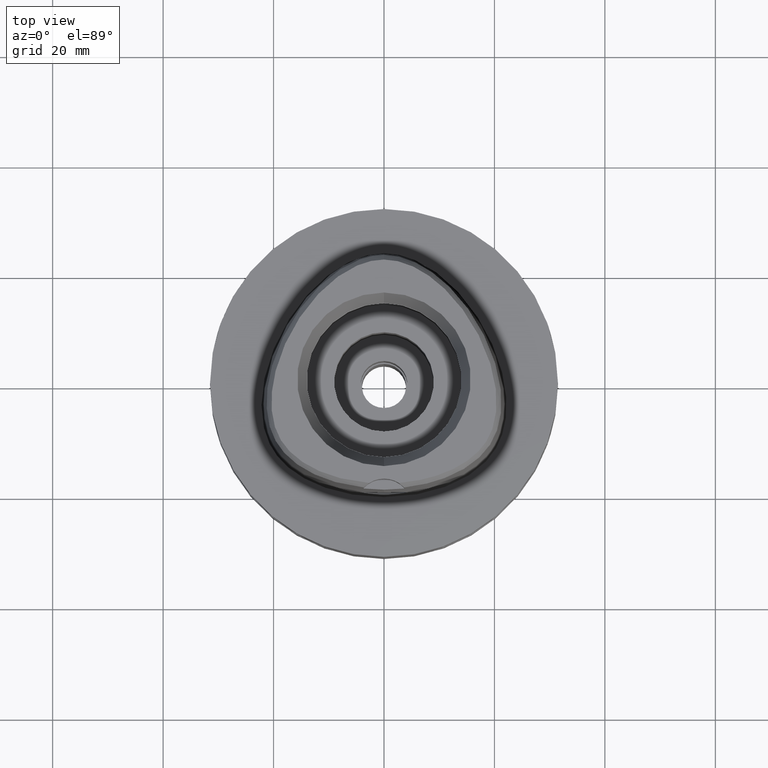
[diagram: clean part render]
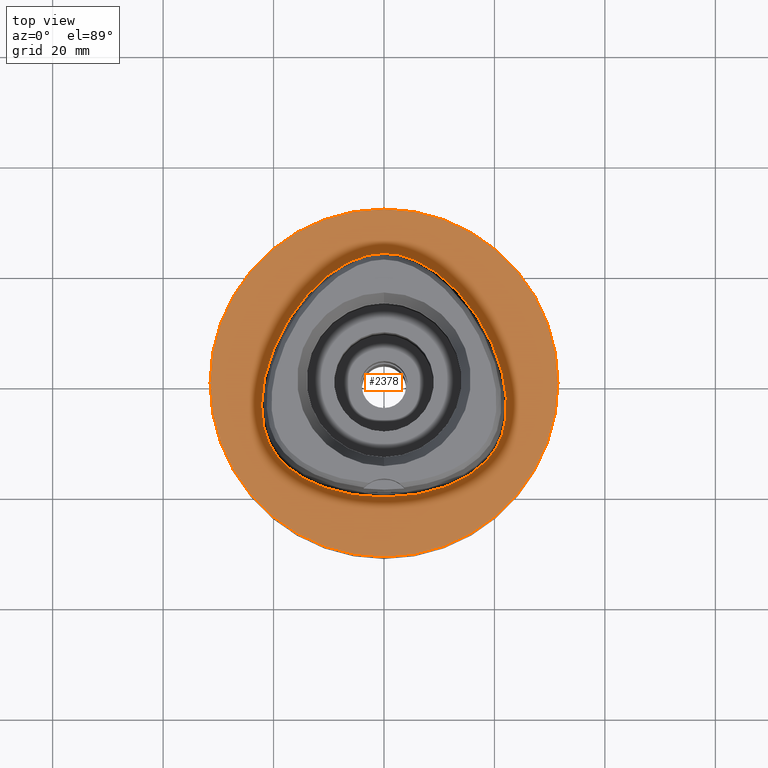
[diagram: same view with one face highlighted and labeled with its STEP entity id]
A machine part, top view. The second image highlights one B-rep face of the part: STEP entity #2378.
In plain terms, the highlighted planar face has unit normal (0, 0, -1).
Its self-contained STEP definition (entity closure, byte-faithful):
#301=CARTESIAN_POINT('',(0.E0,0.E0,0.E0));
#302=DIRECTION('',(0.E0,0.E0,-1.E0));
#303=DIRECTION('',(0.E0,-1.E0,0.E0));
#304=AXIS2_PLACEMENT_3D('',#301,#302,#303);
#309=CARTESIAN_POINT('',(0.E0,0.E0,0.E0));
#310=DIRECTION('',(0.E0,0.E0,-1.E0));
#311=DIRECTION('',(0.E0,1.E0,0.E0));
#312=AXIS2_PLACEMENT_3D('',#309,#310,#311);
#317=CARTESIAN_POINT('',(-1.465437147497E-11,-2.0675E1,1.633878217907E-13));
#318=CARTESIAN_POINT('',(8.668803364509E-1,-2.0675E1,1.633878217907E-13));
#319=CARTESIAN_POINT('',(2.574132580442E0,-2.061244162623E1,
-7.582855198689E-14));
#320=CARTESIAN_POINT('',(5.087415634096E0,-2.033690811064E1,
2.031819926811E-14));
#321=CARTESIAN_POINT('',(7.457333870705E0,-1.989744049255E1,0.E0));
#322=CARTESIAN_POINT('',(9.642474092368E0,-1.931997048993E1,0.E0));
#323=CARTESIAN_POINT('',(1.161486828615E1,-1.863267288465E1,0.E0));
#324=CARTESIAN_POINT('',(1.336667751976E1,-1.786241103413E1,0.E0));
#325=CARTESIAN_POINT('',(1.490394630358E1,-1.703147547079E1,0.E0));
#326=CARTESIAN_POINT('',(1.624047223969E1,-1.615722366742E1,0.E0));
#327=CARTESIAN_POINT('',(1.739425138717E1,-1.525159542110E1,0.E0));
#328=CARTESIAN_POINT('',(1.838383629170E1,-1.432233826779E1,0.E0));
#329=CARTESIAN_POINT('',(1.922780960206E1,-1.337136704076E1,0.E0));
#330=CARTESIAN_POINT('',(1.993661084934E1,-1.240626858167E1,0.E0));
#331=CARTESIAN_POINT('',(2.053368982503E1,-1.140943834190E1,0.E0));
#332=CARTESIAN_POINT('',(2.104238743355E1,-1.034184637881E1,0.E0));
#333=CARTESIAN_POINT('',(2.147152132822E1,-9.173214858301E0,0.E0));
#334=CARTESIAN_POINT('',(2.181291483902E1,-7.891879349025E0,0.E0));
#335=CARTESIAN_POINT('',(2.205606975334E1,-6.484692010195E0,0.E0));
#336=CARTESIAN_POINT('',(2.218640316885E1,-4.938312516264E0,0.E0));
#337=CARTESIAN_POINT('',(2.218556816472E1,-3.242379144613E0,0.E0));
#338=CARTESIAN_POINT('',(2.203223031833E1,-1.390688553403E0,0.E0));
#339=CARTESIAN_POINT('',(2.170392551959E1,6.135368432799E-1,0.E0));
#340=CARTESIAN_POINT('',(2.117977277811E1,2.755970691160E0,0.E0));
#341=CARTESIAN_POINT('',(2.044556324996E1,5.004291597637E0,0.E0));
#342=CARTESIAN_POINT('',(1.949790433788E1,7.310420973057E0,0.E0));
#343=CARTESIAN_POINT('',(1.834986376713E1,9.609257534400E0,0.E0));
#344=CARTESIAN_POINT('',(1.702863727558E1,1.183342032799E1,0.E0));
#345=CARTESIAN_POINT('',(1.557004500344E1,1.392510671624E1,0.E0));
#346=CARTESIAN_POINT('',(1.402223070619E1,1.582947092970E1,0.E0));
#347=CARTESIAN_POINT('',(1.243336650331E1,1.751068427778E1,0.E0));
#348=CARTESIAN_POINT('',(1.084474266800E1,1.895355036210E1,0.E0));
#349=CARTESIAN_POINT('',(9.286601373197E0,2.016057572219E1,0.E0));
#350=CARTESIAN_POINT('',(7.779131805848E0,2.114516431690E1,0.E0));
#351=CARTESIAN_POINT('',(6.332618128114E0,2.192726836443E1,0.E0));
#352=CARTESIAN_POINT('',(4.950403931356E0,2.252844192297E1,0.E0));
#353=CARTESIAN_POINT('',(3.631139080254E0,2.296924701999E1,0.E0));
#354=CARTESIAN_POINT('',(2.369452654715E0,2.326780054190E1,1.995923674423E-14));
#355=CARTESIAN_POINT('',(1.160528679921E0,2.343866214432E1,
-7.448888560977E-14));
#356=CARTESIAN_POINT('',(3.818591413275E-1,2.347499999998E1,
1.605012419266E-13));
#357=CARTESIAN_POINT('',(6.719634042017E-11,2.347499999998E1,
1.605012419266E-13));
#362=CARTESIAN_POINT('',(6.719634042017E-11,2.347499999998E1,
1.605012419266E-13));
#363=CARTESIAN_POINT('',(-3.819443125614E-1,2.347499999999E1,
1.605012419266E-13));
#364=CARTESIAN_POINT('',(-1.160753543235E0,2.343864893773E1,
-7.448888560977E-14));
#365=CARTESIAN_POINT('',(-2.369897235818E0,2.326771777719E1,
1.995923674423E-14));
#366=CARTESIAN_POINT('',(-3.631506996106E0,2.296914083435E1,0.E0));
#367=CARTESIAN_POINT('',(-4.950871462963E0,2.252826647575E1,0.E0));
#368=CARTESIAN_POINT('',(-6.333223129735E0,2.192697973507E1,0.E0));
#369=CARTESIAN_POINT('',(-7.780006260010E0,2.114465454678E1,0.E0));
#370=CARTESIAN_POINT('',(-9.287817810582E0,2.015972199508E1,0.E0));
#371=CARTESIAN_POINT('',(-1.084630283847E1,1.895225574736E1,0.E0));
#372=CARTESIAN_POINT('',(-1.243525740560E1,1.750884400656E1,0.E0));
#373=CARTESIAN_POINT('',(-1.402428453671E1,1.582713623459E1,0.E0));
#374=CARTESIAN_POINT('',(-1.557212568721E1,1.392235370860E1,0.E0));
#375=CARTESIAN_POINT('',(-1.703065248654E1,1.183029480854E1,0.E0));
#376=CARTESIAN_POINT('',(-1.835155091107E1,9.606145577007E0,0.E0));
#377=CARTESIAN_POINT('',(-1.949918507097E1,7.307593336969E0,0.E0));
#378=CARTESIAN_POINT('',(-2.044658800116E1,5.001496273384E0,0.E0));
#379=CARTESIAN_POINT('',(-2.118042744387E1,2.753635525171E0,0.E0));
#380=CARTESIAN_POINT('',(-2.170430537635E1,6.116321017314E-1,0.E0));
#381=CARTESIAN_POINT('',(-2.203239856245E1,-1.392131412768E0,0.E0));
#382=CARTESIAN_POINT('',(-2.218560358290E1,-3.243417684925E0,0.E0));
#383=CARTESIAN_POINT('',(-2.218636695163E1,-4.939018589236E0,0.E0));
#384=CARTESIAN_POINT('',(-2.205600175491E1,-6.485269750078E0,0.E0));
#385=CARTESIAN_POINT('',(-2.181276012104E1,-7.892522551753E0,0.E0));
#386=CARTESIAN_POINT('',(-2.147142586124E1,-9.173662054386E0,0.E0));
#387=CARTESIAN_POINT('',(-2.104146311162E1,-1.034405957759E1,0.E0));
#388=CARTESIAN_POINT('',(-2.053359624625E1,-1.140940031442E1,0.E0));
#389=CARTESIAN_POINT('',(-1.993790422352E1,-1.240421732180E1,0.E0));
#390=CARTESIAN_POINT('',(-1.923004215985E1,-1.336862376336E1,0.E0));
#391=CARTESIAN_POINT('',(-1.838572468631E1,-1.432040939537E1,0.E0));
#392=CARTESIAN_POINT('',(-1.739686473439E1,-1.524933815675E1,0.E0));
#393=CARTESIAN_POINT('',(-1.624317183008E1,-1.615530167288E1,0.E0));
#394=CARTESIAN_POINT('',(-1.490691632917E1,-1.702971006248E1,0.E0));
#395=CARTESIAN_POINT('',(-1.336963315605E1,-1.786098774094E1,0.E0));
#396=CARTESIAN_POINT('',(-1.161737691973E1,-1.863170718294E1,0.E0));
#397=CARTESIAN_POINT('',(-9.644583108640E0,-1.931934609262E1,0.E0));
#398=CARTESIAN_POINT('',(-7.458719466200E0,-1.989715192294E1,0.E0));
#399=CARTESIAN_POINT('',(-5.088167641425E0,-2.033681073035E1,
2.031819926811E-14));
#400=CARTESIAN_POINT('',(-2.574472754017E0,-2.061242599542E1,
-7.582855198689E-14));
#401=CARTESIAN_POINT('',(-8.669815551707E-1,-2.0675E1,1.633878217907E-13));
#402=CARTESIAN_POINT('',(-1.465437147497E-11,-2.0675E1,1.633878217907E-13));
#1538=VERTEX_POINT('',#362);
#1539=VERTEX_POINT('',#402);
#1544=CARTESIAN_POINT('',(0.E0,-3.15E1,0.E0));
#1545=CARTESIAN_POINT('',(0.E0,3.15E1,0.E0));
#1546=VERTEX_POINT('',#1544);
#1547=VERTEX_POINT('',#1545);
#2362=CARTESIAN_POINT('',(0.E0,0.E0,0.E0));
#2363=DIRECTION('',(0.E0,0.E0,-1.E0));
#2364=DIRECTION('',(0.E0,-1.E0,0.E0));
#2365=AXIS2_PLACEMENT_3D('',#2362,#2363,#2364);
#2366=PLANE('',#2365);
#2368=ORIENTED_EDGE('',*,*,#2367,.T.);
#2370=ORIENTED_EDGE('',*,*,#2369,.T.);
#2371=EDGE_LOOP('',(#2368,#2370));
#2372=FACE_OUTER_BOUND('',#2371,.F.);
#2374=ORIENTED_EDGE('',*,*,#2373,.T.);
#2375=ORIENTED_EDGE('',*,*,#2345,.T.);
#2376=EDGE_LOOP('',(#2374,#2375));
#2377=FACE_BOUND('',#2376,.F.);
#305=CIRCLE('',#304,3.15E1);
#313=CIRCLE('',#312,3.15E1);
#358=B_SPLINE_CURVE_WITH_KNOTS('',3,(#317,#318,#319,#320,#321,#322,#323,#324,
#325,#326,#327,#328,#329,#330,#331,#332,#333,#334,#335,#336,#337,#338,#339,#340,
#341,#342,#343,#344,#345,#346,#347,#348,#349,#350,#351,#352,#353,#354,#355,#356,
#357),.UNSPECIFIED.,.F.,.F.,(4,1,1,1,1,1,1,1,1,1,1,1,1,1,1,1,1,1,1,1,1,1,1,1,1,
1,1,1,1,1,1,1,1,1,1,1,1,1,4),(0.E0,2.631578947368E-2,5.263157894737E-2,
7.894736842105E-2,1.052631578947E-1,1.315789473684E-1,1.578947368421E-1,
1.842105263158E-1,2.105263157895E-1,2.368421052632E-1,2.631578947368E-1,
2.894736842105E-1,3.157894736842E-1,3.421052631579E-1,3.684210526316E-1,
3.947368421053E-1,4.210526315789E-1,4.473684210526E-1,4.736842105263E-1,5.E-1,
5.263157894737E-1,5.526315789474E-1,5.789473684211E-1,6.052631578947E-1,
6.315789473684E-1,6.578947368421E-1,6.842105263158E-1,7.105263157895E-1,
7.368421052632E-1,7.631578947368E-1,7.894736842105E-1,8.157894736842E-1,
8.421052631579E-1,8.684210526316E-1,8.947368421053E-1,9.210526315789E-1,
9.473684210526E-1,9.736842105263E-1,1.E0),.UNSPECIFIED.);
#403=B_SPLINE_CURVE_WITH_KNOTS('',3,(#362,#363,#364,#365,#366,#367,#368,#369,
#370,#371,#372,#373,#374,#375,#376,#377,#378,#379,#380,#381,#382,#383,#384,#385,
#386,#387,#388,#389,#390,#391,#392,#393,#394,#395,#396,#397,#398,#399,#400,#401,
#402),.UNSPECIFIED.,.F.,.F.,(4,1,1,1,1,1,1,1,1,1,1,1,1,1,1,1,1,1,1,1,1,1,1,1,1,
1,1,1,1,1,1,1,1,1,1,1,1,1,4),(0.E0,2.631578947368E-2,5.263157894737E-2,
7.894736842105E-2,1.052631578947E-1,1.315789473684E-1,1.578947368421E-1,
1.842105263158E-1,2.105263157895E-1,2.368421052632E-1,2.631578947368E-1,
2.894736842105E-1,3.157894736842E-1,3.421052631579E-1,3.684210526316E-1,
3.947368421053E-1,4.210526315789E-1,4.473684210526E-1,4.736842105263E-1,5.E-1,
5.263157894737E-1,5.526315789474E-1,5.789473684211E-1,6.052631578947E-1,
6.315789473684E-1,6.578947368421E-1,6.842105263158E-1,7.105263157895E-1,
7.368421052632E-1,7.631578947368E-1,7.894736842105E-1,8.157894736842E-1,
8.421052631579E-1,8.684210526316E-1,8.947368421053E-1,9.210526315789E-1,
9.473684210526E-1,9.736842105263E-1,1.E0),.UNSPECIFIED.);
#2345=EDGE_CURVE('',#1538,#1539,#403,.T.);
#2367=EDGE_CURVE('',#1546,#1547,#305,.T.);
#2369=EDGE_CURVE('',#1547,#1546,#313,.T.);
#2373=EDGE_CURVE('',#1539,#1538,#358,.T.);
#2378=ADVANCED_FACE('',(#2372,#2377),#2366,.F.);